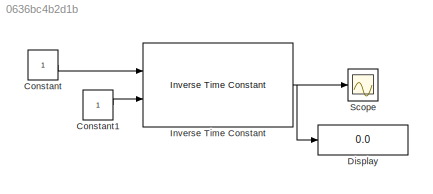
MODEL slx_0636bc4b2d1b
KIND model
BLOCK [Constant] Constant
BLOCK [Constant] Constant1
BLOCK [Display] Display
  Decimation = 1
  Ports = [1]
BLOCK [Reference] Inverse Time Constant  REF=rocket_angular_flight_library/Inverse Time Constant
  Ports = [2, 1]
  SourceBlock = rocket_angular_flight_library/Inverse Time Constant
  SourceType = SubSystem
BLOCK [Scope] Scope
  DataFormat = StructureWithTime
  Floating = off
  NumInputPorts = 1
  Ports = [1]
  SampleTime = 0
  ShowLegends = off
LINE Constant1:1 -> Inverse Time Constant:2
LINE Constant:1 -> Inverse Time Constant:1
NET Inverse Time Constant:1 -> Display:1, Scope:1
note: NET lines group one-source signal fan-out (src -> all destinations, sorted); 1:1 wires keep LINE
